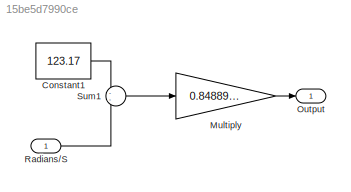
MODEL slx_15be5d7990ce
KIND model
CONFIG AbsTol = auto
CONFIG EnableMultiTasking = off
CONFIG FixedStep = auto
CONFIG MaxStep = auto
CONFIG MinStep = auto
CONFIG RelTol = 1e-3
CONFIG SampleTimeConstraint = Unconstrained
CONFIG SolverName = VariableStepAuto
CONFIG StartTime = 0.0
CONFIG StopTime = 10.0
BLOCK [Constant] Constant1
  Value = 123.17
BLOCK [Gain] Multiply
  Gain = 0.84889643463
BLOCK [Outport] Output
BLOCK [Inport] Radians//S
BLOCK [Sum] Sum1
  Inputs = --
LINE Constant1:1 -> Sum1:1
LINE Multiply:1 -> Output:1
LINE Radians//S:1 -> Sum1:2
LINE Sum1:1 -> Multiply:1
